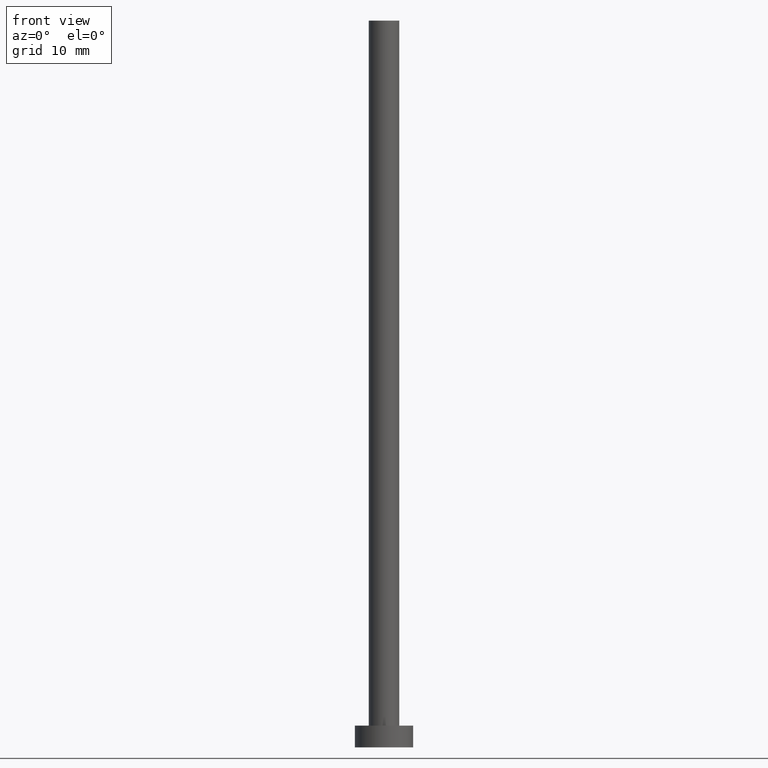
[diagram: clean part render]
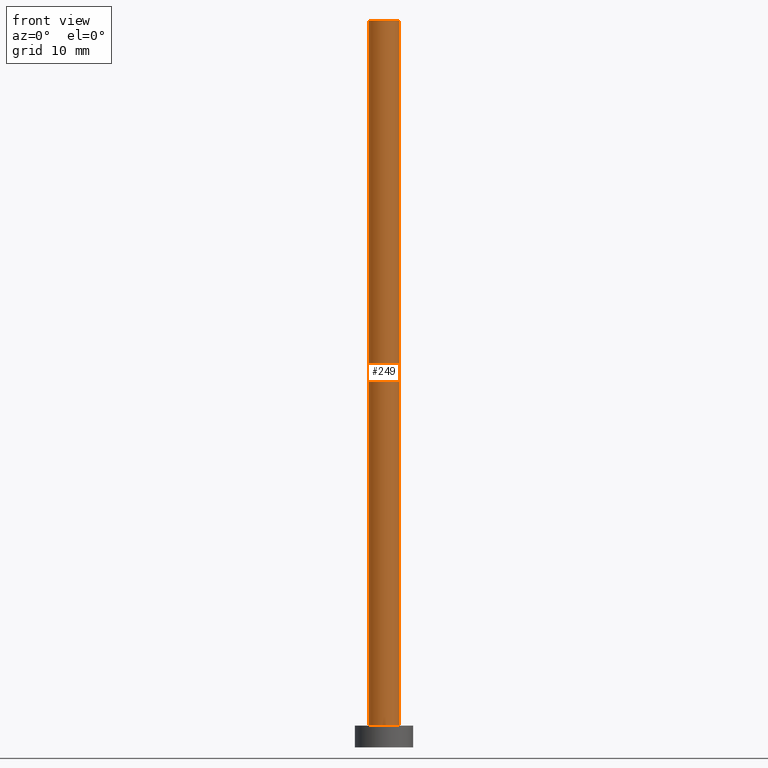
[diagram: same view with one face highlighted and labeled with its STEP entity id]
A machine part, front view. The second image highlights one B-rep face of the part: STEP entity #249.
In plain terms, the highlighted cylindrical surface (edge-blend (fillet) strip) has radius 2.1 mm, axis along (-0, -0, -1).
Its self-contained STEP definition (entity closure, byte-faithful):
#2 = CARTESIAN_POINT ( 'NONE',  ( -2.100000000000000089, 0.000000000000000000, 100.0000000000000000 ) ) ;
#5 = EDGE_CURVE ( 'NONE', #100, #9, #98, .T. ) ;
#8 = CARTESIAN_POINT ( 'NONE',  ( 0.000000000000000000, 0.000000000000000000, 3.000000000000000000 ) ) ;
#9 = VERTEX_POINT ( 'NONE', #62 ) ;
#16 = EDGE_CURVE ( 'NONE', #225, #96, #101, .T. ) ;
#20 = CARTESIAN_POINT ( 'NONE',  ( -2.100000000000000089, 0.000000000000000000, 3.000000000000000000 ) ) ;
#23 = DIRECTION ( 'NONE',  ( 0.000000000000000000, 0.000000000000000000, 1.000000000000000000 ) ) ;
#33 = CIRCLE ( 'NONE', #175, 2.100000000000000089 ) ;
#38 = CARTESIAN_POINT ( 'NONE',  ( 2.100000000000000089, 2.571758278209441464E-16, 100.0000000000000000 ) ) ;
#48 = CARTESIAN_POINT ( 'NONE',  ( 2.100000000000000089, 2.571758278209441464E-16, 100.0000000000000000 ) ) ;
#49 = VECTOR ( 'NONE', #132, 1000.000000000000000 ) ;
#61 = CARTESIAN_POINT ( 'NONE',  ( 0.000000000000000000, 0.000000000000000000, 100.0000000000000000 ) ) ;
#62 = CARTESIAN_POINT ( 'NONE',  ( 2.100000000000000089, 2.571758278209441464E-16, 3.000000000000000000 ) ) ;
#65 = DIRECTION ( 'NONE',  ( 1.000000000000000000, 0.000000000000000000, 0.000000000000000000 ) ) ;
#70 = VECTOR ( 'NONE', #121, 1000.000000000000000 ) ;
#78 = AXIS2_PLACEMENT_3D ( 'NONE', #61, #243, #65 ) ;
#85 = ORIENTED_EDGE ( 'NONE', *, *, #5, .F. ) ;
#87 = ORIENTED_EDGE ( 'NONE', *, *, #16, .T. ) ;
#96 = VERTEX_POINT ( 'NONE', #20 ) ;
#98 = LINE ( 'NONE', #48, #70 ) ;
#100 = VERTEX_POINT ( 'NONE', #38 ) ;
#101 = LINE ( 'NONE', #179, #49 ) ;
#102 = DIRECTION ( 'NONE',  ( -1.000000000000000000, 0.000000000000000000, 0.000000000000000000 ) ) ;
#106 = CYLINDRICAL_SURFACE ( 'NONE', #123, 2.100000000000000089 ) ;
#121 = DIRECTION ( 'NONE',  ( -0.000000000000000000, -0.000000000000000000, -1.000000000000000000 ) ) ;
#123 = AXIS2_PLACEMENT_3D ( 'NONE', #181, #165, #102 ) ;
#132 = DIRECTION ( 'NONE',  ( -0.000000000000000000, -0.000000000000000000, -1.000000000000000000 ) ) ;
#136 = FACE_OUTER_BOUND ( 'NONE', #162, .T. ) ;
#153 = ORIENTED_EDGE ( 'NONE', *, *, #234, .F. ) ;
#162 = EDGE_LOOP ( 'NONE', ( #85, #153, #87, #197 ) ) ;
#165 = DIRECTION ( 'NONE',  ( -0.000000000000000000, -0.000000000000000000, -1.000000000000000000 ) ) ;
#175 = AXIS2_PLACEMENT_3D ( 'NONE', #8, #23, #241 ) ;
#179 = CARTESIAN_POINT ( 'NONE',  ( -2.100000000000000089, 0.000000000000000000, 100.0000000000000000 ) ) ;
#181 = CARTESIAN_POINT ( 'NONE',  ( 0.000000000000000000, 0.000000000000000000, 100.0000000000000000 ) ) ;
#184 = EDGE_CURVE ( 'NONE', #96, #9, #33, .T. ) ;
#197 = ORIENTED_EDGE ( 'NONE', *, *, #184, .T. ) ;
#225 = VERTEX_POINT ( 'NONE', #2 ) ;
#233 = CIRCLE ( 'NONE', #78, 2.100000000000000089 ) ;
#234 = EDGE_CURVE ( 'NONE', #225, #100, #233, .T. ) ;
#241 = DIRECTION ( 'NONE',  ( 1.000000000000000000, 0.000000000000000000, 0.000000000000000000 ) ) ;
#243 = DIRECTION ( 'NONE',  ( 0.000000000000000000, 0.000000000000000000, 1.000000000000000000 ) ) ;
#249 = ADVANCED_FACE ( 'NONE', ( #136 ), #106, .T. ) ;